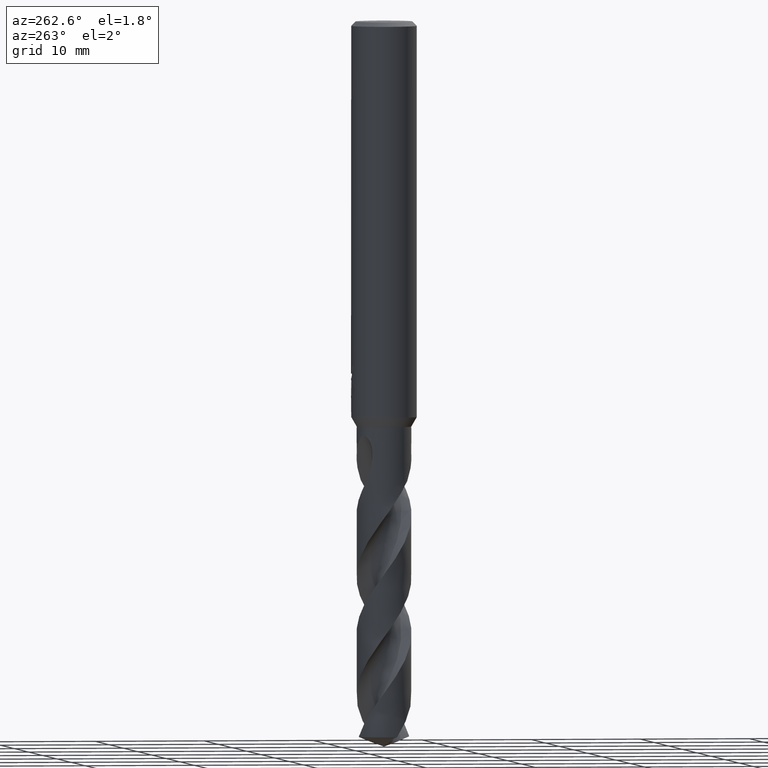
[diagram: clean part render]
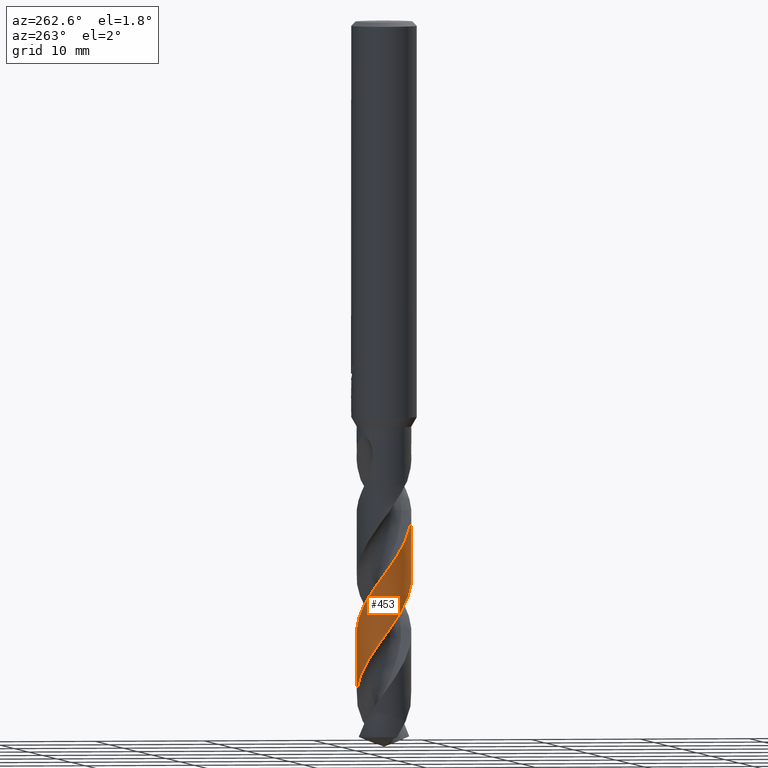
[diagram: same view with one face highlighted and labeled with its STEP entity id]
A machine part, auxiliary view. The second image highlights one B-rep face of the part: STEP entity #453.
In plain terms, the highlighted conical surface has half-angle 0 deg.
Its self-contained STEP definition (entity closure, byte-faithful):
#325=VERTEX_POINT('',#820);
#351=VERTEX_POINT('',#849);
#375=EDGE_CURVE('',#351,#383,#877,.T.);
#383=VERTEX_POINT('',#886);
#453=ADVANCED_FACE('',(#962),#963,.T.);
#605=VERTEX_POINT('',#1129);
#695=EDGE_CURVE('',#383,#605,#1227,.T.);
#705=EDGE_CURVE('',#605,#325,#1237,.T.);
#709=EDGE_CURVE('',#325,#351,#1241,.T.);
#820=CARTESIAN_POINT('',(4.41179954747735E-014,-2.49994476385777,-50.1265623821918));
#849=CARTESIAN_POINT('',(5.67745366687904E-014,-2.49992374959582,-44.4337831787576));
#877=B_SPLINE_CURVE_WITH_KNOTS('',3,(#2259,#2260,#2261,#2262,#2263,#2264,#2265,#2266,#2267,#2268,#2269,#2270,#2271,#2272,#2273,#2274,#2275,#2276,#2277,#2278,#2279,#2280,#2281,#2282,#2283,#2284,#2285,#2286,#2287,#2288,#2289,#2290,#2291,#2292,#2293,#2294,#2295,#2296,#2297,#2298,#2299,#2300,#2301,#2302,#2303,#2304,#2305,#2306,#2307,#2308,#2309,#2310,#2311,#2312,#2313,#2314,#2315,#2316,#2317,#2318,#2319,#2320,#2321,#2322,#2323,#2324,#2325,#2326,#2327,#2328,#2329,#2330,#2331,#2332,#2333,#2334,#2335,#2336,#2337,#2338,#2339,#2340,#2341,#2342,#2343,#2344),.UNSPECIFIED.,.F.,.F.,(4,2,2,2,2,2,2,2,2,2,2,2,2,2,2,2,2,2,2,2,2,2,2,2,2,2,2,2,2,2,2,2,2,2,2,2,2,2,2,2,2,2,4),(0.0,0.112260864502837,0.184359362821101,0.213399574215006,0.509736657349901,0.611469455569257,0.67607461145284,0.736403609462447,0.816753332257204,0.905862269064934,0.994709630813049,1.31016933640133,1.52303416237699,1.74012502438616,1.97225138451341,2.5769587221793,3.17582755069472,5.28094098818037,6.25547495015863,6.95390732003399,8.33895148310456,9.04258170054827,9.76890609568415,10.9380613977759,11.4588702272129,12.329443947901,13.7401059158146,14.4385569099418,15.8239700677305,16.527078061405,17.2530805918108,18.3912785093684,19.1171676344524,20.2366142849576,20.8150936552939,21.6680456775689,23.0795614175122,23.7767668212789,25.034613248438,25.982245117534,26.6874134085245,27.7659504028113,28.8549959927232),.UNSPECIFIED.);
#886=CARTESIAN_POINT('',(-6.85427205963761E-014,2.49996362512359,-55.2360933263023));
#962=FACE_OUTER_BOUND('',#2671,.T.);
#963=CONICAL_SURFACE('',#2672,2.49995,3.69138890024025E-006);
#1129=CARTESIAN_POINT('',(-1.49229272866229E-012,2.4999846378401,-60.9284538668785));
#1227=LINE('',#4912,#4913);
#1237=B_SPLINE_CURVE_WITH_KNOTS('',3,(#4937,#4938,#4939,#4940,#4941,#4942,#4943,#4944,#4945,#4946,#4947,#4948,#4949,#4950,#4951,#4952,#4953,#4954,#4955,#4956,#4957,#4958,#4959,#4960,#4961,#4962,#4963,#4964,#4965,#4966,#4967,#4968,#4969,#4970,#4971,#4972,#4973,#4974,#4975,#4976,#4977,#4978,#4979,#4980,#4981,#4982,#4983,#4984,#4985,#4986,#4987,#4988,#4989,#4990,#4991,#4992,#4993,#4994,#4995,#4996,#4997,#4998,#4999,#5000,#5001,#5002,#5003,#5004,#5005,#5006,#5007,#5008,#5009,#5010,#5011,#5012,#5013,#5014,#5015,#5016,#5017,#5018,#5019,#5020),.UNSPECIFIED.,.F.,.F.,(4,2,2,2,2,2,2,2,2,2,2,2,2,2,2,2,2,2,2,2,2,2,2,2,2,2,2,2,2,2,2,2,2,2,2,2,2,2,2,2,2,4),(0.0,0.705339197520786,0.793382321570578,2.25138278825527,3.00462327397265,4.43627068182508,4.65154079261242,5.90010120325481,6.66712664066002,7.53589064290537,7.96607251350422,8.69509283644515,10.0914412677393,10.1967862482771,11.6549208246733,12.669538107501,13.4584254143811,14.3321507532212,15.0973158277061,16.5459662624766,17.3053546183504,18.0885905116614,18.8115249966454,19.279328148774,19.708212639708,20.6425852317231,21.1109216559262,21.5031201077526,22.7239835989881,23.578576880337,25.9301483865861,26.2469974652199,26.7142829934866,27.2288762379342,27.5732682245291,27.8937227863951,28.088743994366,28.2138346206703,28.3266994819867,28.4725834430864,28.7692788626183,29.2462642896059),.UNSPECIFIED.);
#1241=LINE('',#5039,#5040);
#2259=CARTESIAN_POINT('',(1.73763251753517,-1.79727657886597,-41.785));
#2260=CARTESIAN_POINT('',(1.72252333530305,-1.81188450976754,-41.8159612489024));
#2261=CARTESIAN_POINT('',(1.70718617082374,-1.82634501859521,-41.8468795146963));
#2262=CARTESIAN_POINT('',(1.68154298277478,-1.84991098365062,-41.8975809070587));
#2263=CARTESIAN_POINT('',(1.67141317902932,-1.8590692528715,-41.9173653160194));
#2264=CARTESIAN_POINT('',(1.65703232985693,-1.87185662135655,-41.9450887427945));
#2265=CARTESIAN_POINT('',(1.65288519865155,-1.87551971762377,-41.9530420787317));
#2266=CARTESIAN_POINT('',(1.60620232643014,-1.91647797607889,-42.0420979238477));
#2267=CARTESIAN_POINT('',(1.56246716801761,-1.95234792768013,-42.1210954414537));
#2268=CARTESIAN_POINT('',(1.50028167347757,-1.99978310686885,-42.227975883074));
#2269=CARTESIAN_POINT('',(1.48419571491864,-2.01175231019348,-42.2551787188267));
#2270=CARTESIAN_POINT('',(1.45753670999504,-2.03109077354531,-42.2996346269201));
#2271=CARTESIAN_POINT('',(1.44710899818027,-2.03853378536827,-42.3168713218616));
#2272=CARTESIAN_POINT('',(1.42679459870815,-2.0527983694335,-42.3501934975548));
#2273=CARTESIAN_POINT('',(1.41692666331454,-2.05962221572695,-42.3662651215763));
#2274=CARTESIAN_POINT('',(1.39377738134128,-2.07538472771843,-42.4037411168762));
#2275=CARTESIAN_POINT('',(1.38046563646273,-2.08426304220233,-42.4251198296799));
#2276=CARTESIAN_POINT('',(1.35220723016896,-2.10272041107082,-42.4702394281514));
#2277=CARTESIAN_POINT('',(1.33726269703165,-2.11225587309809,-42.4939484196819));
#2278=CARTESIAN_POINT('',(1.30725642988721,-2.13095660651317,-42.5413850380991));
#2279=CARTESIAN_POINT('',(1.2923244978479,-2.14004504858615,-42.5649268475117));
#2280=CARTESIAN_POINT('',(1.22332005301744,-2.18105409024123,-42.6736537518266));
#2281=CARTESIAN_POINT('',(1.16861193977936,-2.21082703702394,-42.7594024168656));
#2282=CARTESIAN_POINT('',(1.07590408055228,-2.25693625153088,-42.9026979906832));
#2283=CARTESIAN_POINT('',(1.03811787140269,-2.27456344180112,-42.9605691828507));
#2284=CARTESIAN_POINT('',(0.960985511374694,-2.30822576491049,-43.0773163559859));
#2285=CARTESIAN_POINT('',(0.921551483921318,-2.32425367031421,-43.1362986553882));
#2286=CARTESIAN_POINT('',(0.8390040255291,-2.3553656240407,-43.2581045466893));
#2287=CARTESIAN_POINT('',(0.796090888358268,-2.37021423763794,-43.320432311903));
#2288=CARTESIAN_POINT('',(0.639376534698698,-2.41969056295324,-43.5458807471));
#2289=CARTESIAN_POINT('',(0.52376972651087,-2.4473157517774,-43.7080488751313));
#2290=CARTESIAN_POINT('',(0.290712059834841,-2.48574152987732,-44.0324353303556));
#2291=CARTESIAN_POINT('',(0.173728396688082,-2.49663090738882,-44.1943179083837));
#2292=CARTESIAN_POINT('',(-0.355258969603241,-2.50860697280931,-44.9235593864885));
#2293=CARTESIAN_POINT('',(-0.763518078083648,-2.41600035109201,-45.4815312883698));
#2294=CARTESIAN_POINT('',(-1.30197298682552,-2.14266978525486,-46.3110638048063));
#2295=CARTESIAN_POINT('',(-1.46172325060606,-2.03700618249477,-46.5731453254474));
#2296=CARTESIAN_POINT('',(-1.7124282504041,-1.82645486623332,-47.0241990257444));
#2297=CARTESIAN_POINT('',(-1.80979502863984,-1.73004530715259,-47.2121272159208));
#2298=CARTESIAN_POINT('',(-2.07544703662313,-1.41982938828046,-47.7733523651048));
#2299=CARTESIAN_POINT('',(-2.21720066132969,-1.1862888779259,-48.1441944793016));
#2300=CARTESIAN_POINT('',(-2.37014142318382,-0.806917133270198,-48.7071592318503));
#2301=CARTESIAN_POINT('',(-2.41103927122509,-0.674999642587216,-48.8963335569884));
#2302=CARTESIAN_POINT('',(-2.47163657768579,-0.401250810810141,-49.2814895592192));
#2303=CARTESIAN_POINT('',(-2.49045213018025,-0.259951396096615,-49.4767087897871));
#2304=CARTESIAN_POINT('',(-2.50795736223287,0.110676771147047,-49.9877567032391));
#2305=CARTESIAN_POINT('',(-2.48731984574039,0.33990093065441,-50.3015001432585));
#2306=CARTESIAN_POINT('',(-2.41265119289138,0.662782306715702,-50.7567138468756));
#2307=CARTESIAN_POINT('',(-2.38358285259224,0.760708154329032,-50.8967340540895));
#2308=CARTESIAN_POINT('',(-2.29020920288703,1.01674146919683,-51.271852605434));
#2309=CARTESIAN_POINT('',(-2.21552212850267,1.17061021820503,-51.5063783220262));
#2310=CARTESIAN_POINT('',(-1.98019957735888,1.55081325226681,-52.1212928079423));
#2311=CARTESIAN_POINT('',(-1.7967370778824,1.76006050497928,-52.4982066592868));
#2312=CARTESIAN_POINT('',(-1.4770632228819,2.02157595699445,-53.0669998620074));
#2313=CARTESIAN_POINT('',(-1.36419782880229,2.09940614803679,-53.2550031556123));
#2314=CARTESIAN_POINT('',(-1.00986821921095,2.30299156290972,-53.8165632892454));
#2315=CARTESIAN_POINT('',(-0.753908621841553,2.39897411049964,-54.1877323344301));
#2316=CARTESIAN_POINT('',(-0.352637915115392,2.4787954483603,-54.7508913869026));
#2317=CARTESIAN_POINT('',(-0.215473381603783,2.49447489545714,-54.9400033887996));
#2318=CARTESIAN_POINT('',(0.0647164103895022,2.50318029136245,-55.3250706796532));
#2319=CARTESIAN_POINT('',(0.207048243522436,2.49542971000956,-55.5202326204788));
#2320=CARTESIAN_POINT('',(0.568580393522606,2.44463391465389,-56.0230316095461));
#2321=CARTESIAN_POINT('',(0.784379146282158,2.38420746395317,-56.3287321982573));
#2322=CARTESIAN_POINT('',(1.12021045813233,2.23947641491702,-56.8310641147544));
#2323=CARTESIAN_POINT('',(1.24581739004214,2.1720968551072,-57.026199557768));
#2324=CARTESIAN_POINT('',(1.54863283591716,1.9747589507911,-57.5239715725305));
#2325=CARTESIAN_POINT('',(1.71594996112536,1.83128955472324,-57.8247579413884));
#2326=CARTESIAN_POINT('',(1.93817520153726,1.58310864327393,-58.2823826843968));
#2327=CARTESIAN_POINT('',(2.00798844690481,1.49355720708313,-58.4379139421343));
#2328=CARTESIAN_POINT('',(2.16505013751213,1.2611053406718,-58.8240279275446));
#2329=CARTESIAN_POINT('',(2.24454505595285,1.11350093817954,-59.053962226006));
#2330=CARTESIAN_POINT('',(2.41489958901247,0.703405976224387,-59.6647036799445));
#2331=CARTESIAN_POINT('',(2.47784934080741,0.432023431873294,-60.0418923218608));
#2332=CARTESIAN_POINT('',(2.50363488443737,0.0196933937977146,-60.6109144037261));
#2333=CARTESIAN_POINT('',(2.50097886872942,-0.117197857899903,-60.7987195115122));
#2334=CARTESIAN_POINT('',(2.46212169595631,-0.498783927510732,-61.3258934330047));
#2335=CARTESIAN_POINT('',(2.40091599958184,-0.739127207020128,-61.6631131779569));
#2336=CARTESIAN_POINT('',(2.2338193918088,-1.1377566552117,-62.2581594987702));
#2337=CARTESIAN_POINT('',(2.14310945946471,-1.30062626711827,-62.5127378022084));
#2338=CARTESIAN_POINT('',(1.95469301301005,-1.56470195337123,-62.9582745862431));
#2339=CARTESIAN_POINT('',(1.86518320287083,-1.67036731272217,-63.1480903350564));
#2340=CARTESIAN_POINT('',(1.61814650371225,-1.91733878363906,-63.6295195009935));
#2341=CARTESIAN_POINT('',(1.45028454642239,-2.04730432846539,-63.9195889519878));
#2342=CARTESIAN_POINT('',(1.08365734364996,-2.26304112289946,-64.5040157659291));
#2343=CARTESIAN_POINT('',(0.886332459629429,-2.34735393689852,-64.7963888537596));
#2344=CARTESIAN_POINT('',(0.680722000651791,-2.40553893292721,-65.0900744143345));
#2671=EDGE_LOOP('',(#5403,#5404,#5405,#5406));
#2672=AXIS2_PLACEMENT_3D('',#5407,#5408,#5409);
#4912=CARTESIAN_POINT('',(-3.05962890391696E-016,2.49995,-51.5450372071672));
#4913=VECTOR('',#5723,1.0);
#4937=CARTESIAN_POINT('',(2.33886570378173,0.883010316855709,-65.0900744143345));
#4938=CARTESIAN_POINT('',(2.29018651938241,1.01194688173756,-64.8995912051756));
#4939=CARTESIAN_POINT('',(2.23092460490224,1.13665062986234,-64.7100951293949));
#4940=CARTESIAN_POINT('',(2.15302469915512,1.27073593422715,-64.4959070597195));
#4941=CARTESIAN_POINT('',(2.1442207592548,1.28553609939877,-64.472111254221));
#4942=CARTESIAN_POINT('',(1.98678778484872,1.54406599651903,-64.0543117836237));
#4943=CARTESIAN_POINT('',(1.79765498664675,1.76071742994334,-63.6691206230355));
#4944=CARTESIAN_POINT('',(1.46106991957155,2.03397333101309,-63.0729881137587));
#4945=CARTESIAN_POINT('',(1.3387134986244,2.11648750832682,-62.8683680680261));
#4946=CARTESIAN_POINT('',(0.964657451981324,2.32332222494383,-62.2793320910932));
#4947=CARTESIAN_POINT('',(0.69897325682646,2.41647387334835,-61.9016570737109));
#4948=CARTESIAN_POINT('',(0.382407185479408,2.47092301410859,-61.4573899510818));
#4949=CARTESIAN_POINT('',(0.340867709908535,2.47699761568448,-61.3992147453919));
#4950=CARTESIAN_POINT('',(0.0563478475743394,2.5112739965807,-61.003299264333));
#4951=CARTESIAN_POINT('',(-0.189608343135859,2.50481682207799,-60.6711720264274));
#4952=CARTESIAN_POINT('',(-0.579565260537321,2.43653634270258,-60.1276073745795));
#4953=CARTESIAN_POINT('',(-0.724948518564298,2.39726021017557,-59.9193839674674));
#4954=CARTESIAN_POINT('',(-1.02506863263222,2.28648165309439,-59.4782613980477));
#4955=CARTESIAN_POINT('',(-1.17831992412939,2.2114564016881,-59.2459558974683));
#4956=CARTESIAN_POINT('',(-1.39467602971787,2.07651048743198,-58.8965223679479));
#4957=CARTESIAN_POINT('',(-1.46390664603325,2.02828694439699,-58.7809489062009));
#4958=CARTESIAN_POINT('',(-1.64327822800571,1.8894094326415,-58.4685922413044));
#4959=CARTESIAN_POINT('',(-1.7483581524877,1.79262949092385,-58.2708240246628));
#4960=CARTESIAN_POINT('',(-2.02940128095464,1.4853431575734,-57.6979776913192));
#4961=CARTESIAN_POINT('',(-2.17925435306539,1.25493433466018,-57.3290026389153));
#4962=CARTESIAN_POINT('',(-2.29705520209781,0.986817472755293,-56.9235364768892));
#4963=CARTESIAN_POINT('',(-2.30507952916041,0.967926413946162,-56.8950832633762));
#4964=CARTESIAN_POINT('',(-2.42113010422204,0.685044448277029,-56.4719082265747));
#4965=CARTESIAN_POINT('',(-2.48356100727685,0.404417834670134,-56.0859939424185));
#4966=CARTESIAN_POINT('',(-2.50659506717053,-0.0800407247237364,-55.4189373381309));
#4967=CARTESIAN_POINT('',(-2.49229892214999,-0.279349955401422,-55.1433153216711));
#4968=CARTESIAN_POINT('',(-2.42492042760174,-0.627386078063755,-54.6568579728654));
#4969=CARTESIAN_POINT('',(-2.38135850488306,-0.776487814845948,-54.4454467138055));
#4970=CARTESIAN_POINT('',(-2.26114064723096,-1.08003494077674,-53.9968472247886));
#4971=CARTESIAN_POINT('',(-2.18185072072324,-1.23235498120629,-53.7593969954083));
#4972=CARTESIAN_POINT('',(-2.00494937631542,-1.50083101470481,-53.3171586147428));
#4973=CARTESIAN_POINT('',(-1.91116266766739,-1.61859837190658,-53.112044618715));
#4974=CARTESIAN_POINT('',(-1.61047048276792,-1.93319634496103,-52.5154743402466));
#4975=CARTESIAN_POINT('',(-1.38013598735321,-2.10382408476296,-52.1229823365801));
#4976=CARTESIAN_POINT('',(-0.99260590740174,-2.29929685617157,-51.5279808320998));
#4977=CARTESIAN_POINT('',(-0.853743195249389,-2.35436476757688,-51.3245139937356));
#4978=CARTESIAN_POINT('',(-0.563799069806127,-2.4403786197949,-50.9082819896367));
#4979=CARTESIAN_POINT('',(-0.412981631343818,-2.47038560908166,-50.6954791630184));
#4980=CARTESIAN_POINT('',(-0.11901365907579,-2.50113763149859,-50.2890201030382));
#4981=CARTESIAN_POINT('',(0.0232164944698478,-2.50387566829468,-50.0950844062439));
#4982=CARTESIAN_POINT('',(0.256853705997476,-2.48841426397878,-49.77417228586));
#4983=CARTESIAN_POINT('',(0.348055349974197,-2.47729039331593,-49.6482845247746));
#4984=CARTESIAN_POINT('',(0.520963507443,-2.44650035895448,-49.4061104721306));
#4985=CARTESIAN_POINT('',(0.602685130837747,-2.42765676547963,-49.2898050791214));
#4986=CARTESIAN_POINT('',(0.859197154920285,-2.35475865633735,-48.9216903022311));
#4987=CARTESIAN_POINT('',(1.02934264093602,-2.28557387656802,-48.6717864102814));
#4988=CARTESIAN_POINT('',(1.27165135869698,-2.15431164505599,-48.2940967555422));
#4989=CARTESIAN_POINT('',(1.34993058627535,-2.10612955998195,-48.1681927189443));
#4990=CARTESIAN_POINT('',(1.4883385472369,-2.01008139786983,-47.9360550917751));
#4991=CARTESIAN_POINT('',(1.5492123002633,-1.96353410862559,-47.8298460469216));
#4992=CARTESIAN_POINT('',(1.78996870490875,-1.7613372557221,-47.395318995317));
#4993=CARTESIAN_POINT('',(1.9496909545453,-1.58285486599002,-47.0717920481496));
#4994=CARTESIAN_POINT('',(2.17448398382074,-1.24468217331734,-46.5144982738418));
#4995=CARTESIAN_POINT('',(2.2526019737145,-1.0968730466019,-46.2833884371949));
#4996=CARTESIAN_POINT('',(2.48803906064716,-0.518638114496798,-45.4222822357989));
#4997=CARTESIAN_POINT('',(2.54062258923928,-0.0555729162293293,-44.8112583819243));
#4998=CARTESIAN_POINT('',(2.45880234864903,0.455723352451119,-44.0945173006001));
#4999=CARTESIAN_POINT('',(2.4468973412289,0.515831332644643,-44.0092168394315));
#5000=CARTESIAN_POINT('',(2.41187184718078,0.663850594871653,-43.7987508428433));
#5001=CARTESIAN_POINT('',(2.38608501919556,0.751429651911781,-43.6736065661477));
#5002=CARTESIAN_POINT('',(2.32136151183696,0.933338264774399,-43.4119001796399));
#5003=CARTESIAN_POINT('',(2.28306880789496,1.02315747934894,-43.2833104282126));
#5004=CARTESIAN_POINT('',(2.21015576180881,1.17009838148852,-43.0614027716611));
#5005=CARTESIAN_POINT('',(2.17906545765208,1.22691164671473,-42.9722679094293));
#5006=CARTESIAN_POINT('',(2.11611124955793,1.33235334070159,-42.7976338622386));
#5007=CARTESIAN_POINT('',(2.08469135568577,1.38087800673129,-42.7129642337649));
#5008=CARTESIAN_POINT('',(2.03294649755781,1.45529685352343,-42.5744180418892));
#5009=CARTESIAN_POINT('',(2.02076851950718,1.47204102932389,-42.5409648806847));
#5010=CARTESIAN_POINT('',(1.99254880361841,1.50985818786231,-42.4690373933075));
#5011=CARTESIAN_POINT('',(1.9811666898461,1.52477099155072,-42.4411907208433));
#5012=CARTESIAN_POINT('',(1.95874872343735,1.55344212704166,-42.3886208636849));
#5013=CARTESIAN_POINT('',(1.94780718237226,1.56714575363147,-42.3639042100505));
#5014=CARTESIAN_POINT('',(1.92194963662612,1.5988184779648,-42.3076760456658));
#5015=CARTESIAN_POINT('',(1.9068374202197,1.61682592622175,-42.2763575164937));
#5016=CARTESIAN_POINT('',(1.85921428427484,1.671909772006,-42.1823545253478));
#5017=CARTESIAN_POINT('',(1.82505699022864,1.70924079166424,-42.1210876010134));
#5018=CARTESIAN_POINT('',(1.72931248242326,1.80725969585964,-41.9648759997831));
#5019=CARTESIAN_POINT('',(1.66442739678851,1.86757587951774,-41.8733433334085));
#5020=CARTESIAN_POINT('',(1.59301279645432,1.9266240155434,-41.785));
#5039=CARTESIAN_POINT('',(3.06328040455955E-016,-2.49995,-51.5450372071672));
#5040=VECTOR('',#5727,1.0);
#5403=ORIENTED_EDGE('',*,*,#695,.T.);
#5404=ORIENTED_EDGE('',*,*,#705,.T.);
#5405=ORIENTED_EDGE('',*,*,#709,.T.);
#5406=ORIENTED_EDGE('',*,*,#375,.T.);
#5407=CARTESIAN_POINT('',(0.0,0.0,-51.5450372071672));
#5408=DIRECTION('',(0.0,-0.0,-1.0));
#5409=DIRECTION('',(0.0,1.0,0.0));
#5723=DIRECTION('',(-4.52049830165335E-022,3.69138890023187E-006,-0.999999999993187));
#5727=DIRECTION('',(-4.52049830165335E-022,3.69138890023187E-006,0.999999999993187));